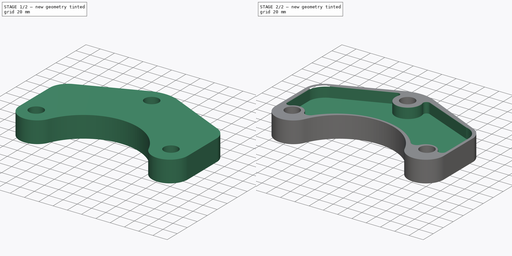
[diagram: build sequence overview — one tinted view per stage of 2, left to right]
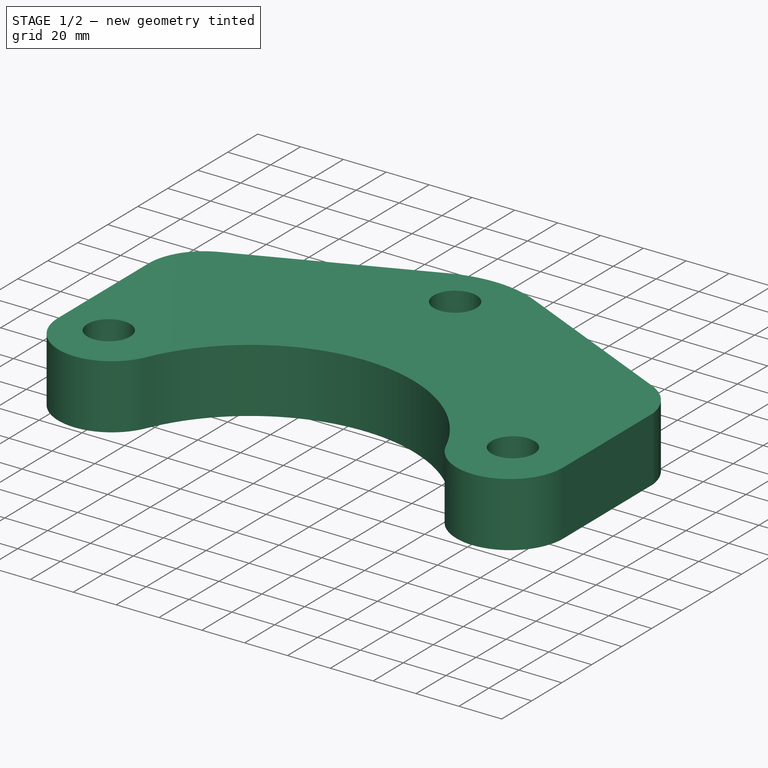
[diagram: stage 1 of 2 — iso view after this stage's code; geometry added in this stage tinted green]
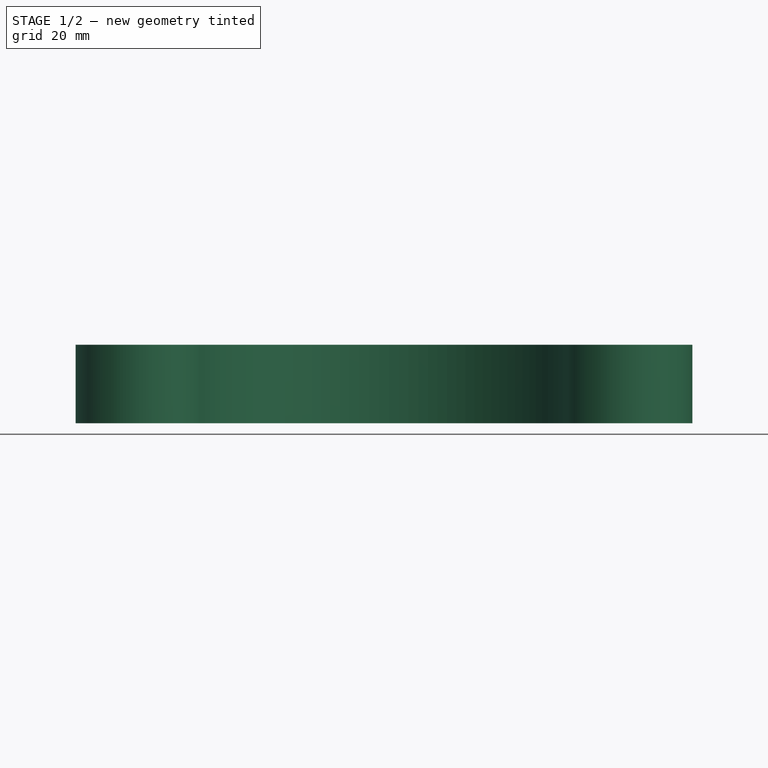
[diagram: stage 1 of 2 — front view after this stage's code; geometry added in this stage tinted green]
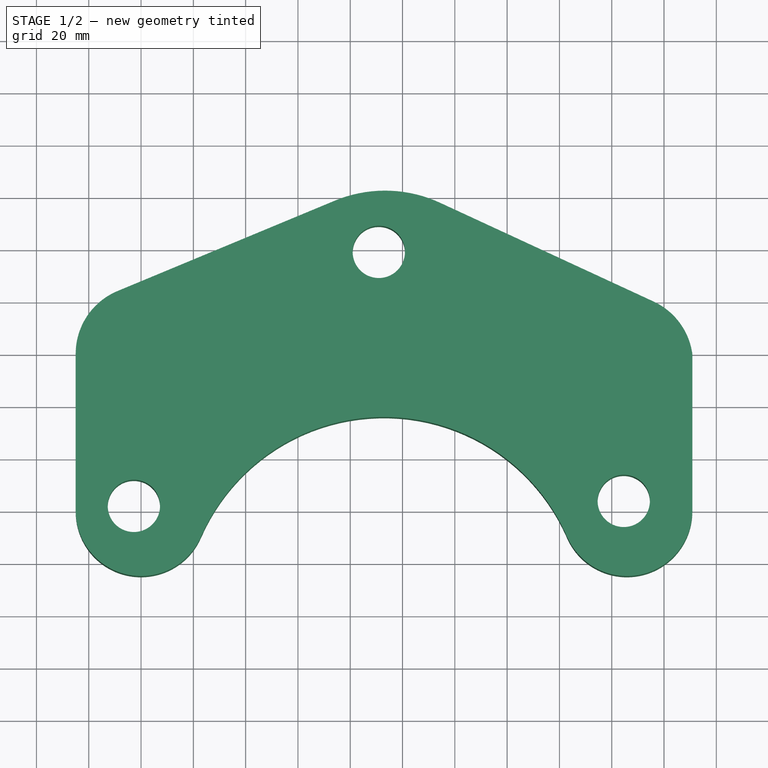
[diagram: stage 1 of 2 — top view after this stage's code; geometry added in this stage tinted green]
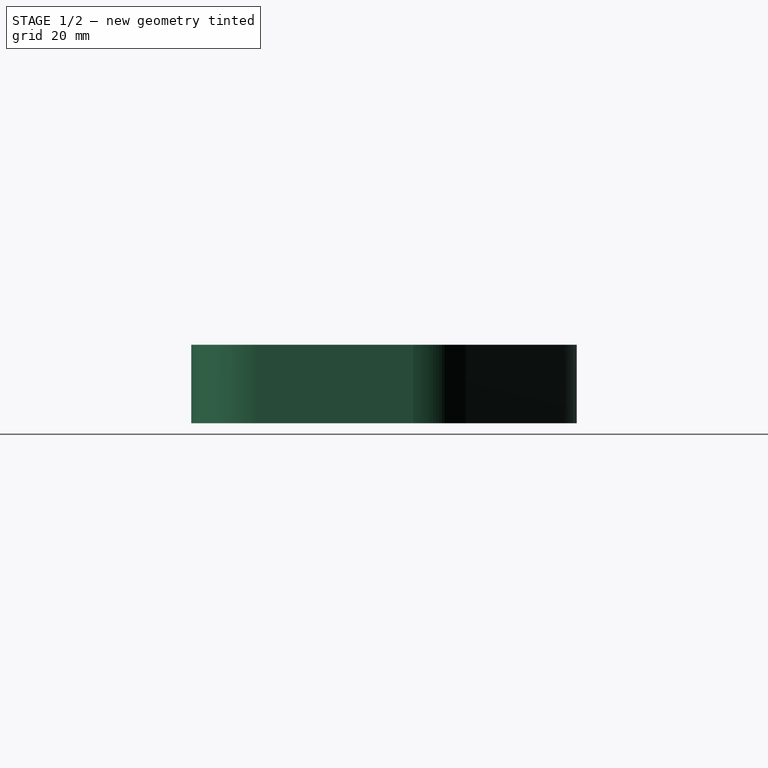
[diagram: stage 1 of 2 — right view after this stage's code; geometry added in this stage tinted green]
FCSTD DOCUMENT  (FreeCAD 1.0R39285 (Git))
Label: worksheet_exe.4
License: All rights reserved
LicenseURL: https://en.wikipedia.org/wiki/All_rights_reserved
objects: Sketcher::SketchObject×3, PartDesign::Pocket×2, PartDesign::Pad×1, PartDesign::Fillet×1, PartDesign::Body×1
note: 19 computed .brp shape members not serialized (recipe doc carries the construction recipe); baked Part::Feature solids carry a one-line shape summary decoded from their .brp

FEATURE [Sketcher::SketchObject] Sketch
  ArcFitTolerance = 1e-06
  AttachmentSupport = -> [XY_Plane]
  FullyConstrained = true
  MakeInternals = false
  MapMode = 5
  sketch-geometry (10):
    g0: LineSegment StartX=15 StartY=20 StartZ=0 EndX=15 EndY=80 EndZ=0
    g1: ArcOfCircle CenterX=41 CenterY=80 CenterZ=0 NormalX=0 NormalY=0 NormalZ=1 AngleXU=0 Radius=26 StartAngle=1.96496 EndAngle=3.14159
    g2: LineSegment StartX=31.0151 StartY=104.006 StartZ=0 EndX=114.114 EndY=138.569 EndZ=0
    g3: ArcOfCircle CenterX=133.316 CenterY=92.4033 CenterZ=0 NormalX=0 NormalY=0 NormalZ=1 AngleXU=0 Radius=50 StartAngle=1.13755 EndAngle=1.96496
    g4: LineSegment StartX=154.306 StartY=137.784 StartZ=0 EndX=235.991 EndY=100 EndZ=0
    g5: ArcOfCircle CenterX=225.076 CenterY=76.4022 CenterZ=0 NormalX=0 NormalY=0 NormalZ=1 AngleXU=0 Radius=26 StartAngle=0.138822 EndAngle=1.13755
    g6: LineSegment StartX=250.826 StartY=80 StartZ=0 EndX=250.826 EndY=20 EndZ=0
    g7: ArcOfCircle CenterX=225.826 CenterY=20 CenterZ=0 NormalX=0 NormalY=0 NormalZ=1 AngleXU=0 Radius=25 StartAngle=3.55311 EndAngle=6.28319
    g8: ArcOfCircle CenterX=132.913 CenterY=-20.5505 CenterZ=0 NormalX=0 NormalY=0 NormalZ=1 AngleXU=0 Radius=76.3763 StartAngle=0.411517 EndAngle=2.73008
    g9: ArcOfCircle CenterX=40 CenterY=20 CenterZ=0 NormalX=0 NormalY=0 NormalZ=1 AngleXU=0 Radius=25 StartAngle=3.14159 EndAngle=5.87167
  constraints (28):
    c: Vertical(g0)
    c: Tangent(g0,g1) = 1.5708
    c: Tangent(g1,g2) = 1.5708
    c: Tangent(g2,g3) = 1.5708
    c: Tangent(g3,g4) = 1.5708
    c: Tangent(g4,g5) = 1.5708
    c: Coincident(g5,g6)
    c: Tangent(g6,g7) = 1.5708
    c: Tangent(g7,g8) = 1.5708
    c: Tangent(g8,g9) = 1.5708
    c: Coincident(g9,g0)
    c: DistanceX(g8,g7) = 140
    c: Parallel(g0,g6)
    c: Equal(g2,g4)
    c: DistanceY(g-1,g8) = 10
    c: DistanceY(g-1,g7) = 10
    c: DistanceY(g-1,g0) = 20
    c: DistanceY(g-1,g6) = 20
    c: DistanceY(g0,g0) = 60
    c: DistanceY(g6,g6) = 60
    c: Radius(g9) = 25
    c: Radius(g7) = 25
    c: Distance(g2,g2) = 90
    c: Radius(g1) = 26
    c: Radius(g5) = 26
    c: Radius(g3) = 50
    c: DistanceY(g-1,g4) = 100
    c: DistanceX(g-1,g0) = 15
FEATURE [PartDesign::Pad] Pad
  Direction = (0,0,1)
  Length = 30
  Length2 = 10
  Profile = -> Sketch
  ReferenceAxis = -> Sketch [N_Axis]
  Refine = true
  Suppressed = false
  Type = 0
FEATURE [Sketcher::SketchObject] Sketch001
  ArcFitTolerance = 1e-06
  AttachmentSupport = -> [Pad]
  FullyConstrained = true
  MakeInternals = false
  MapMode = 5
  Placement = pos=(0,0,30) rot=(0,0,1;0rad)
  sketch-geometry (3):
    g0: Circle CenterX=37.26 CenterY=21.83 CenterZ=0 NormalX=0 NormalY=0 NormalZ=1 AngleXU=0 Radius=10
    g1: Circle CenterX=224.6 CenterY=23.7354 CenterZ=0 NormalX=0 NormalY=0 NormalZ=1 AngleXU=0 Radius=10
    g2: Circle CenterX=130.926 CenterY=118.98 CenterZ=0 NormalX=0 NormalY=0 NormalZ=1 AngleXU=0 Radius=10
  constraints (9):
    c: Diameter(g0) = 20
    c: Diameter(g1) = 20
    c: Diameter(g2) = 20
    c: DistanceX(g0,g1) = 187.34
    c: Distance(g0,g2) = 134.95
    c: Distance(g2,g1) = 133.59
    c: DistanceX(g-1,g0) = 37.26
    c: DistanceY(g-1,g0) = 21.83
    c: DistanceY(g-1,g2) = 118.98
FEATURE [PartDesign::Pocket] Pocket
  BaseFeature = -> Pad
  Direction = (0,0,-1)
  Length = 35
  Length2 = 5
  Profile = -> Sketch001
  ReferenceAxis = -> Sketch001 [N_Axis]
  Refine = true
  Suppressed = false
  Type = 0
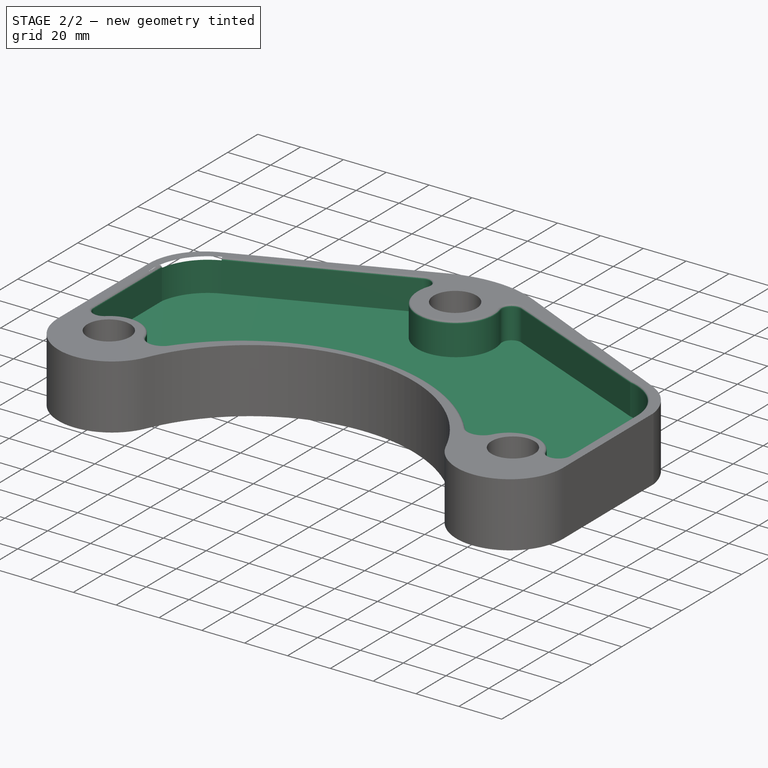
[diagram: stage 2 of 2 — iso view after this stage's code; geometry added in this stage tinted green]
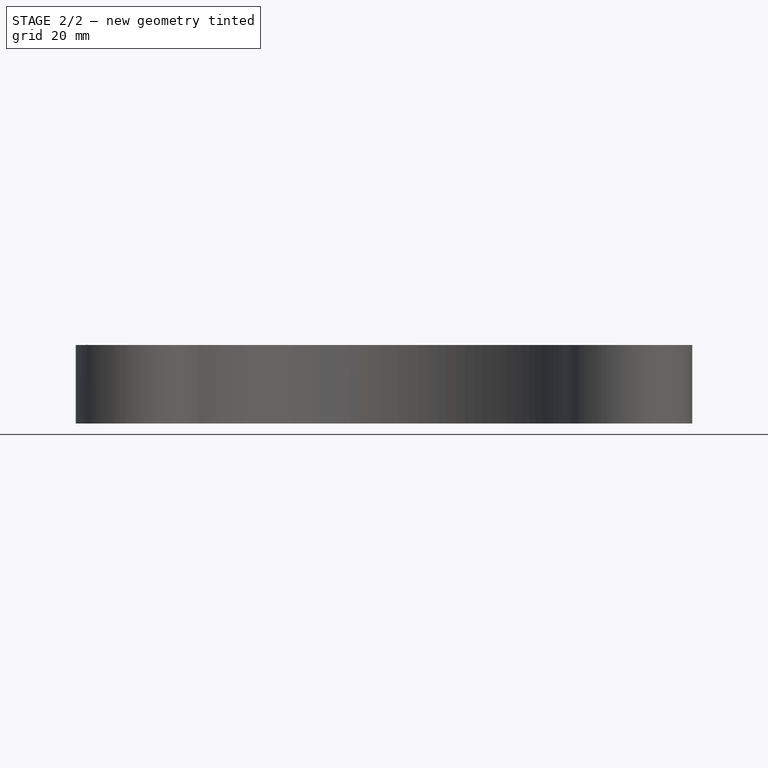
[diagram: stage 2 of 2 — front view after this stage's code; geometry added in this stage tinted green]
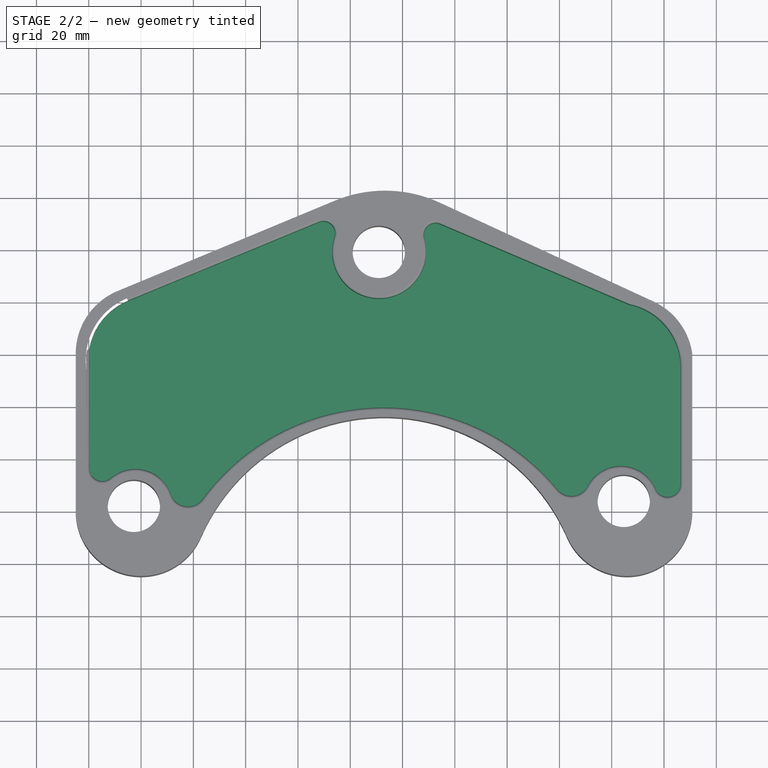
[diagram: stage 2 of 2 — top view after this stage's code; geometry added in this stage tinted green]
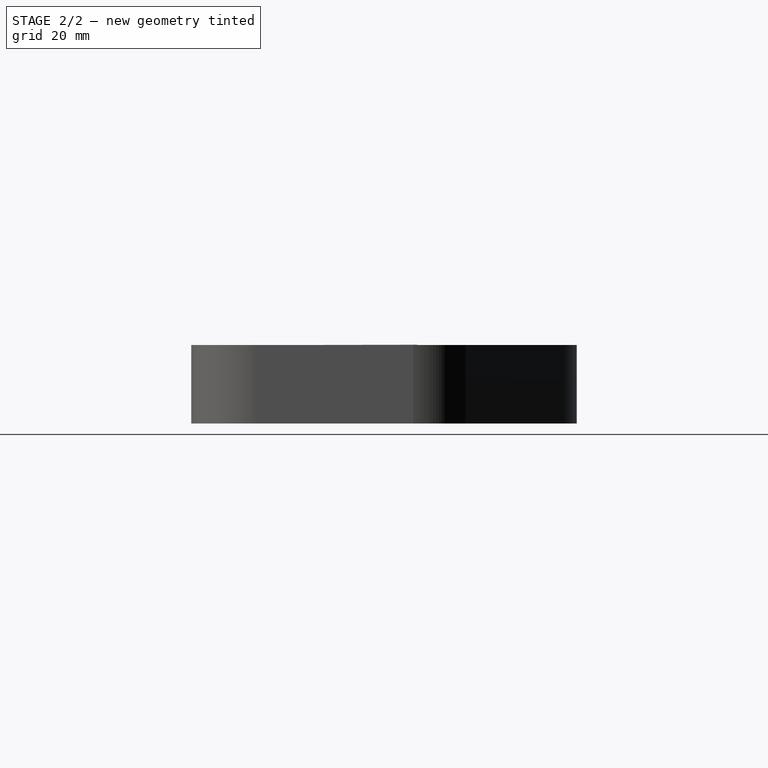
[diagram: stage 2 of 2 — right view after this stage's code; geometry added in this stage tinted green]
FEATURE [Sketcher::SketchObject] Sketch002
  ArcFitTolerance = 1e-06
  AttachmentSupport = -> [Pocket]
  FullyConstrained = true
  MakeInternals = false
  MapMode = 5
  Placement = pos=(0,0,30) rot=(0,0,1;0rad)
  sketch-geometry (16):
    g0: LineSegment StartX=20.17 StartY=81.64 StartZ=0 EndX=20.17 EndY=36.31 EndZ=0
    g1: ArcOfCircle CenterX=25.17 CenterY=36.31 CenterZ=0 NormalX=0 NormalY=0 NormalZ=1 AngleXU=0 Radius=5 StartAngle=3.14159 EndAngle=5.4197
    g2: ArcOfCircle CenterX=37.75 CenterY=21.5943 CenterZ=0 NormalX=0 NormalY=0 NormalZ=1 AngleXU=0 Radius=14.36 StartAngle=0.333945 EndAngle=2.27811
    g3: ArcOfCircle CenterX=57.93 CenterY=28.5955 CenterZ=0 NormalX=0 NormalY=0 NormalZ=1 AngleXU=0 Radius=7 StartAngle=3.47554 EndAngle=5.56512
    g4: LineSegment StartX=246.318 StartY=30.26 StartZ=0 EndX=246.318 EndY=74.88 EndZ=0
    g5: ArcOfCircle CenterX=221.818 CenterY=74.88 CenterZ=0 NormalX=0 NormalY=0 NormalZ=1 AngleXU=0 Radius=24.5 StartAngle=0 EndAngle=1.36975
    g6: LineSegment StartX=226.711 StartY=98.8865 StartZ=0 EndX=154.402 EndY=129.69 EndZ=0
    g7: ArcOfCircle CenterX=152.638 CenterY=125.55 CenterZ=0 NormalX=0 NormalY=0 NormalZ=1 AngleXU=0 Radius=4.5 StartAngle=1.16808 EndAngle=3.42724
    g8: ArcOfCircle CenterX=131.05 CenterY=119.21 CenterZ=0 NormalX=0 NormalY=0 NormalZ=1 AngleXU=0 Radius=18 StartAngle=2.82368 EndAngle=6.56883
    g9: ArcOfCircle CenterX=109.677 CenterY=126.243 CenterZ=0 NormalX=0 NormalY=0 NormalZ=1 AngleXU=0 Radius=4.5 StartAngle=5.96527 EndAngle=8.32165
    g10: LineSegment StartX=107.649 StartY=130.26 StartZ=0 EndX=34.9947 EndY=100.28 EndZ=0
    g11: ArcOfCircle CenterX=44.34 CenterY=77.6324 CenterZ=0 NormalX=0 NormalY=0 NormalZ=1 AngleXU=0 Radius=24.5 StartAngle=1.96215 EndAngle=2.97728
    g12: ArcOfCircle CenterX=241.318 CenterY=30.26 CenterZ=0 NormalX=0 NormalY=0 NormalZ=1 AngleXU=0 Radius=5 StartAngle=3.53954 EndAngle=6.28319
    g13: ArcOfCircle CenterX=223.471 CenterY=22.7574 CenterZ=0 NormalX=0 NormalY=0 NormalZ=1 AngleXU=0 Radius=14.36 StartAngle=0.397949 EndAngle=2.66165
    g14: ArcOfCircle CenterX=204.524 CenterY=32.62 CenterZ=0 NormalX=0 NormalY=0 NormalZ=1 AngleXU=0 Radius=7 StartAngle=3.83128 EndAngle=5.80324
    g15: ArcOfCircle CenterX=132.78 CenterY=-26.5555 CenterZ=0 NormalX=0 NormalY=0 NormalZ=1 AngleXU=0 Radius=86 StartAngle=0.689686 EndAngle=2.51333
  constraints (48):
    c: Vertical(g0)
    c: Tangent(g0,g1) = -1.5708
    c: Tangent(g1,g2) = 1.5708
    c: Tangent(g2,g3) = 1.5708
    c: Tangent(g4,g5) = -1.5708
    c: Coincident(g5,g6)
    c: Tangent(g6,g7) = -1.5708
    c: Tangent(g7,g8) = 1.5708
    c: Tangent(g8,g9) = 1.5708
    c: Coincident(g9,g10)
    c: Tangent(g10,g11) = -1.5708
    c: Coincident(g11,g0)
    c: Tangent(g4,g12) = -1.5708
    c: Tangent(g12,g13) = 1.5708
    c: Tangent(g13,g14) = 1.5708
    c: Tangent(g14,g15) = 1.5708
    c: Coincident(g15,g3)
    c: DistanceY(g-1,g0) = 36.31
    c: Radius(g1) = 5
    c: Radius(g3) = 7
    c: Radius(g11) = 24.5
    c: Radius(g9) = 4.5
    c: Radius(g8) = 18
    c: Radius(g7) = 4.5
    c: Radius(g14) = 7
    c: Radius(g12) = 5
    c: Radius(g5) = 24.5
    c: Radius(g15) = 86
    c: Equal(g10,g6)
    c: Parallel(g0,g4)
    c: Radius(g2) = 14.36
    c: Radius(g13) = 14.36
    c: DistanceY(g-1,g0) = 81.64
    c: DistanceY(g-1,g10) = 100.28
    c: DistanceX(g-1,g0) = 20.17
    c: DistanceX(g-1,g2) = 37.75
    c: DistanceX(g-1,g3) = 57.93
    c: DistanceX(g-1,g11) = 44.34
    c: DistanceY(g-1,g3) = 23.99
    c: DistanceX(g-1,g15) = 132.78
    c: DistanceY(g-1,g9) = 130.26
    c: DistanceY(g-1,g8) = 119.21
    c: DistanceX(g-1,g8) = 131.05
    c: DistanceY(g-1,g7) = 125.55
    c: DistanceY(g-1,g6) = 129.69
    c: DistanceY(g-1,g5) = 74.88
    c: DistanceY(g-1,g14) = 32.62
    c: DistanceY(g-1,g12) = 30.26
FEATURE [PartDesign::Pocket] Pocket001
  BaseFeature = -> Pocket
  Direction = (0,0,-1)
  Length = 15
  Length2 = 5
  Profile = -> Sketch002
  ReferenceAxis = -> Sketch002 [N_Axis]
  Refine = true
  Suppressed = false
  Type = 0
FEATURE [PartDesign::Fillet] Fillet
  Base = -> Pocket001 [Edge31,Edge43,Edge37,Edge41,Edge42,Edge39,Edge38,Edge40,Edge36,Edge35,Edge34,Edge33,Edge32,Edge30,Edge45,Edge44]
  BaseFeature = -> Pocket001
  Radius = 1
  Refine = true
  SupportTransform = false
  Suppressed = false
  UseAllEdges = false
FEATURE [PartDesign::Body] Body
  AllowCompound = false
  Group = -> [Sketch,Pad,Sketch001,Pocket,Sketch002,Pocket001,Fillet]
  Origin = -> Origin
  Tip = -> Fillet
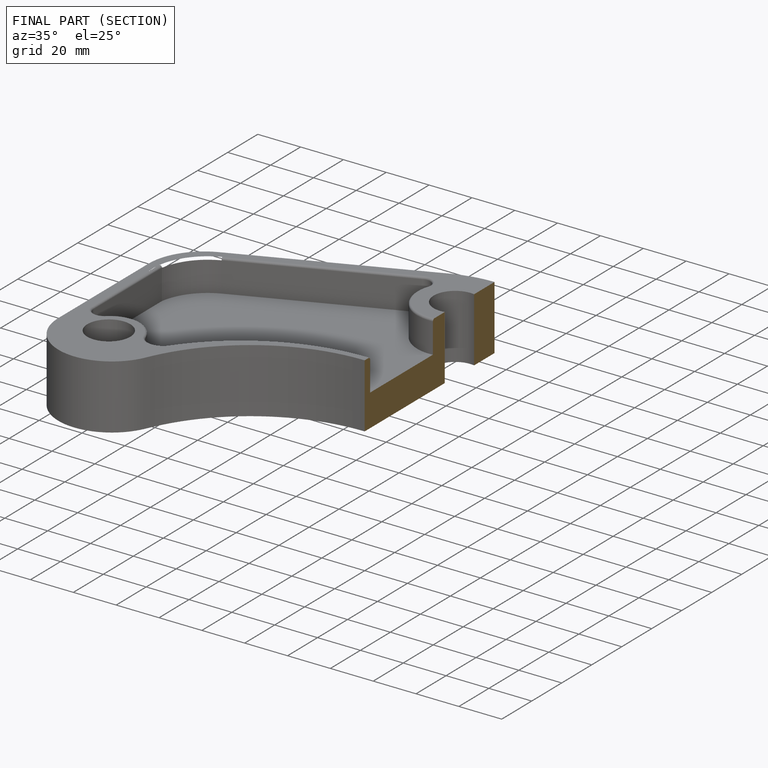
[diagram: finished part — half-section view (interior)]
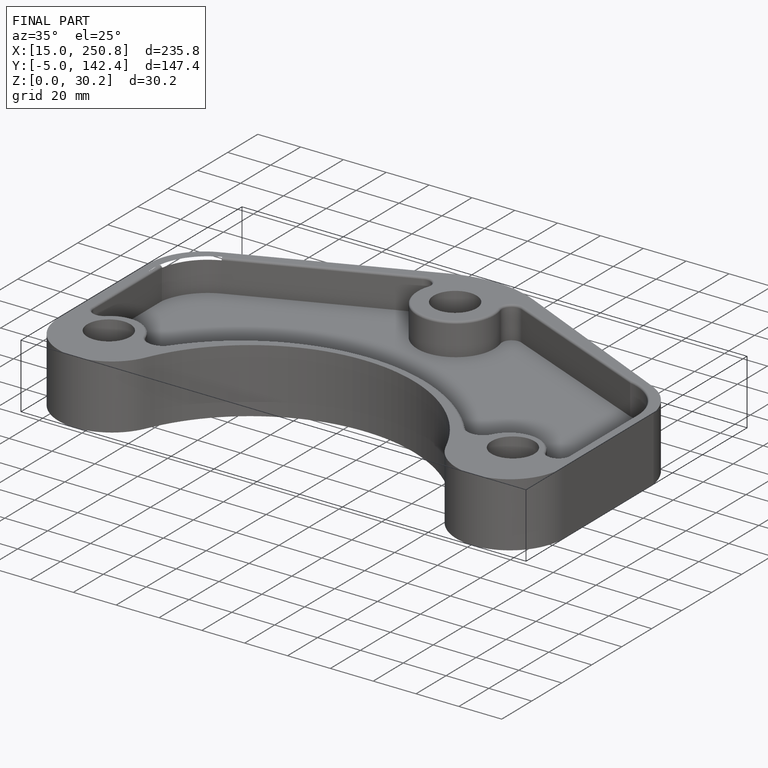
[diagram: finished part — iso view with bounding-box wireframe]
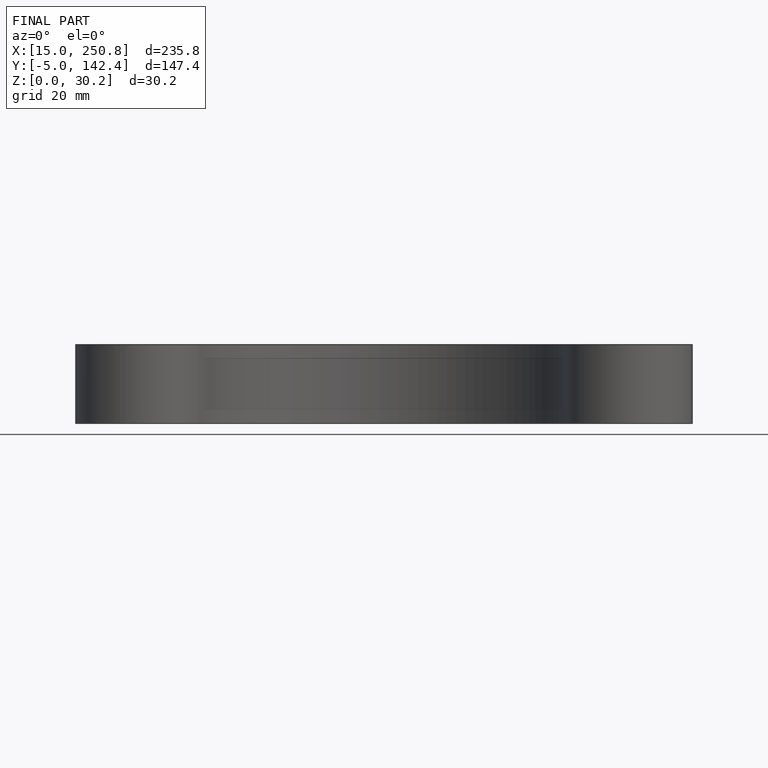
[diagram: finished part — front view with bounding-box wireframe]
